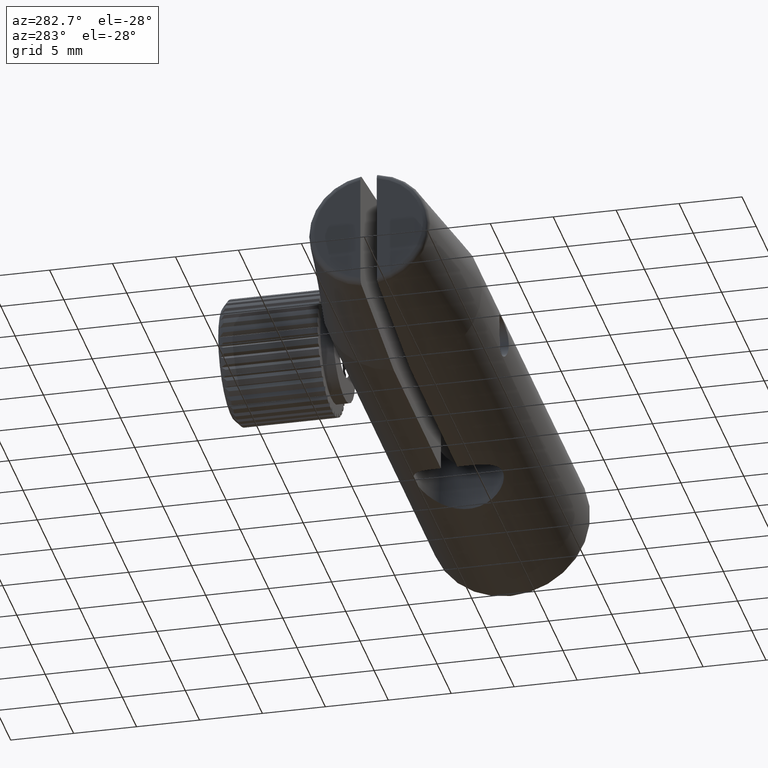
[diagram: clean part render]
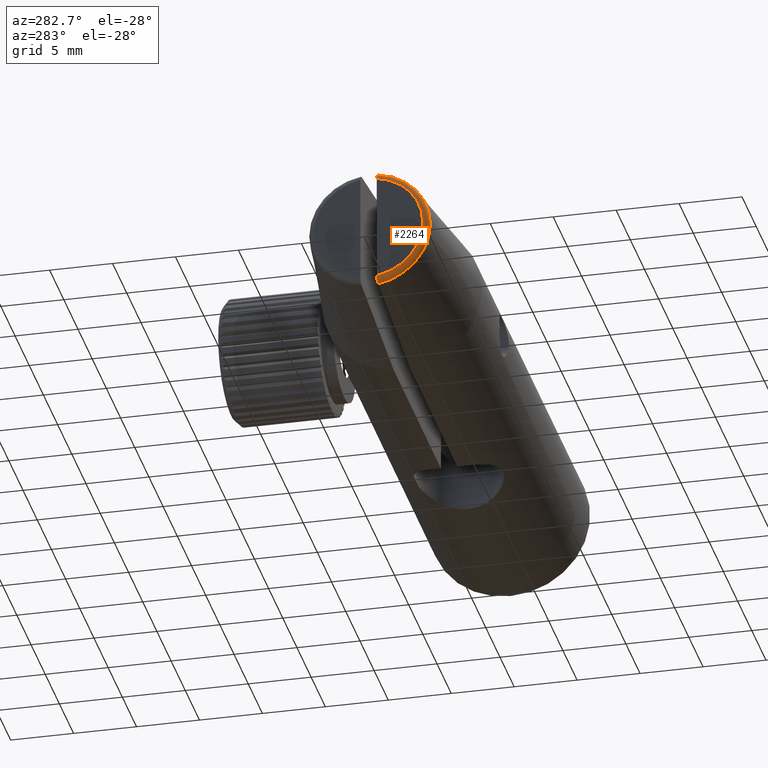
[diagram: same view with one face highlighted and labeled with its STEP entity id]
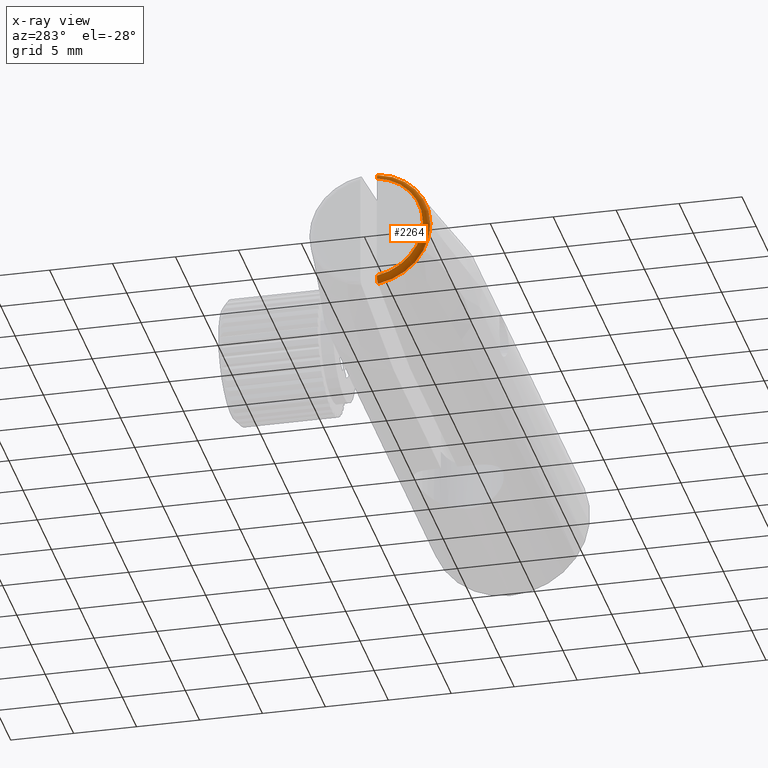
[diagram: x-ray of the same camera — body ghosted, the highlighted face saturated]
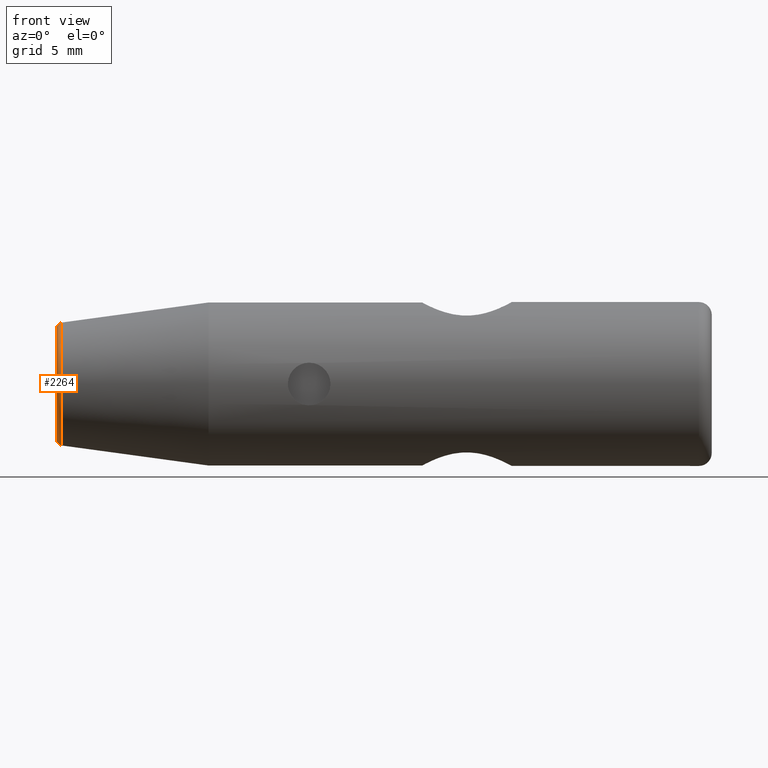
[diagram: same view with one face highlighted and labeled with its STEP entity id]
A machine part, auxiliary view. The second image highlights one B-rep face of the part: STEP entity #2264.
The next image is the same camera in x-ray: the body ghosted, the highlighted face saturated — about 0% of this face is hidden behind the body in this view.
A second angle (front view) of the same face is appended — the face is thin or edge-on in the first view.
In plain terms, the highlighted toroidal blend (fillet) surface has major radius 4.3132 mm and minor (blend) radius 0.5 mm.
Its self-contained STEP definition (entity closure, byte-faithful):
#442 = DIRECTION ( 'NONE',  ( -1.000000000000000000, -0.0000000000000000000, -0.0000000000000000000 ) ) ;
#449 = CARTESIAN_POINT ( 'NONE',  ( -32.66206131108059200, -2.668439813343262300, 0.0000000000000000000 ) ) ;
#451 = DIRECTION ( 'NONE',  ( 0.0000000000000000000, 0.0000000000000000000, 1.000000000000000000 ) ) ;
#452 = CARTESIAN_POINT ( 'NONE',  ( -33.16206131108059200, -3.318439813343262200, -4.263962571843185500 ) ) ;
#457 = CARTESIAN_POINT ( 'NONE',  ( -33.16206131108059200, -3.318439813343262200, 4.263962571843185500 ) ) ;
#458 = CARTESIAN_POINT ( 'NONE',  ( -32.72924314756738100, -3.318439813343262200, -4.764553774517430900 ) ) ;
#495 = CARTESIAN_POINT ( 'NONE',  ( -32.72924314756739500, -3.318439813343262200, 4.764553774517806600 ) ) ;
#707 = AXIS2_PLACEMENT_3D ( 'NONE', #449, #442, #451 ) ;
#750 = AXIS2_PLACEMENT_3D ( 'NONE', #1593, #1594, #1595 ) ;
#751 = AXIS2_PLACEMENT_3D ( 'NONE', #1603, #1604, #1605 ) ;
#930 = CIRCLE ( 'NONE', #751, 4.808687208611960500 ) ;
#932 = CIRCLE ( 'NONE', #750, 4.313221164521888100 ) ;
#1200 = ORIENTED_EDGE ( 'NONE', *, *, #3806, .F. ) ;
#1203 = ORIENTED_EDGE ( 'NONE', *, *, #3808, .T. ) ;
#1204 = ORIENTED_EDGE ( 'NONE', *, *, #3809, .T. ) ;
#1205 = ORIENTED_EDGE ( 'NONE', *, *, #3810, .T. ) ;
#1590 = CARTESIAN_POINT ( 'NONE',  ( -33.16206131108058500, -3.318439813343262200, -4.384582160113128100 ) ) ;
#1591 = CARTESIAN_POINT ( 'NONE',  ( -33.16206131108059200, -3.318439813343262200, -4.263962571843185500 ) ) ;
#1593 = CARTESIAN_POINT ( 'NONE',  ( -33.16206131108059200, -2.668439813343262300, 0.0000000000000000000 ) ) ;
#1594 = DIRECTION ( 'NONE',  ( -1.000000000000000000, -0.0000000000000000000, -0.0000000000000000000 ) ) ;
#1595 = DIRECTION ( 'NONE',  ( 0.0000000000000000000, 0.0000000000000000000, 1.000000000000000000 ) ) ;
#1597 = CARTESIAN_POINT ( 'NONE',  ( -33.11861480309558900, -3.318439813343263100, -4.503374737799505000 ) ) ;
#1598 = CARTESIAN_POINT ( 'NONE',  ( -32.96064175738125400, -3.318439813343262200, -4.687150978039025700 ) ) ;
#1599 = CARTESIAN_POINT ( 'NONE',  ( -32.84781346086633400, -3.318439813343262700, -4.748327521704639200 ) ) ;
#1600 = CARTESIAN_POINT ( 'NONE',  ( -32.72924314756738100, -3.318439813343262200, -4.764553774517430900 ) ) ;
#1601 = CARTESIAN_POINT ( 'NONE',  ( -32.72924314756739500, -3.318439813343262200, 4.764553774517806600 ) ) ;
#1602 = CARTESIAN_POINT ( 'NONE',  ( -32.84834889065012200, -3.318439813343262200, 4.748254248565728200 ) ) ;
#1603 = CARTESIAN_POINT ( 'NONE',  ( -32.72924314756738100, -2.668439813343262300, 0.0000000000000000000 ) ) ;
#1604 = DIRECTION ( 'NONE',  ( -1.000000000000000000, -0.0000000000000000000, -0.0000000000000000000 ) ) ;
#1605 = DIRECTION ( 'NONE',  ( 0.0000000000000000000, 0.0000000000000000000, 1.000000000000000000 ) ) ;
#1607 = CARTESIAN_POINT ( 'NONE',  ( -32.96121638901510000, -3.318439813343263100, 4.686365421788284600 ) ) ;
#1608 = CARTESIAN_POINT ( 'NONE',  ( -33.11762300824031500, -3.318439813343262200, 4.504645284458199200 ) ) ;
#1609 = CARTESIAN_POINT ( 'NONE',  ( -33.16206131108059200, -3.318439813343262700, 4.383778507876175300 ) ) ;
#1610 = CARTESIAN_POINT ( 'NONE',  ( -33.16206131108059200, -3.318439813343262200, 4.263962571843185500 ) ) ;
#2264 = ADVANCED_FACE ( 'NONE', ( #4716 ), #4717, .T. ) ;
#2752 = VERTEX_POINT ( 'NONE', #457 ) ;
#2753 = VERTEX_POINT ( 'NONE', #458 ) ;
#2754 = VERTEX_POINT ( 'NONE', #452 ) ;
#3116 = VERTEX_POINT ( 'NONE', #495 ) ;
#3318 = EDGE_LOOP ( 'NONE', ( #1200, #1203, #1204, #1205 ) ) ;
#3456 = B_SPLINE_CURVE_WITH_KNOTS ( 'NONE', 3,
 ( #1591, #1590, #1597, #1598, #1599, #1600 ),
 .UNSPECIFIED., .F., .F.,
 ( 4, 2, 4 ),
 ( 0.002672750175576420400, 0.003031796742791103600, 0.003390843310005786400 ),
 .UNSPECIFIED. ) ;
#3457 = B_SPLINE_CURVE_WITH_KNOTS ( 'NONE', 3,
 ( #1601, #1602, #1607, #1608, #1609, #1610 ),
 .UNSPECIFIED., .F., .F.,
 ( 4, 2, 4 ),
 ( 0.001895573248214810300, 0.002255042070053460900, 0.002614510891892111800 ),
 .UNSPECIFIED. ) ;
#3806 = EDGE_CURVE ( 'NONE', #2754, #2752, #932, .T. ) ;
#3808 = EDGE_CURVE ( 'NONE', #2754, #2753, #3456, .T. ) ;
#3809 = EDGE_CURVE ( 'NONE', #2753, #3116, #930, .T. ) ;
#3810 = EDGE_CURVE ( 'NONE', #3116, #2752, #3457, .T. ) ;
#4716 = FACE_OUTER_BOUND ( 'NONE', #3318, .T. ) ;
#4717 = TOROIDAL_SURFACE ( 'NONE', #707, 4.313221164521891600, 0.4999999999999997800 ) ;